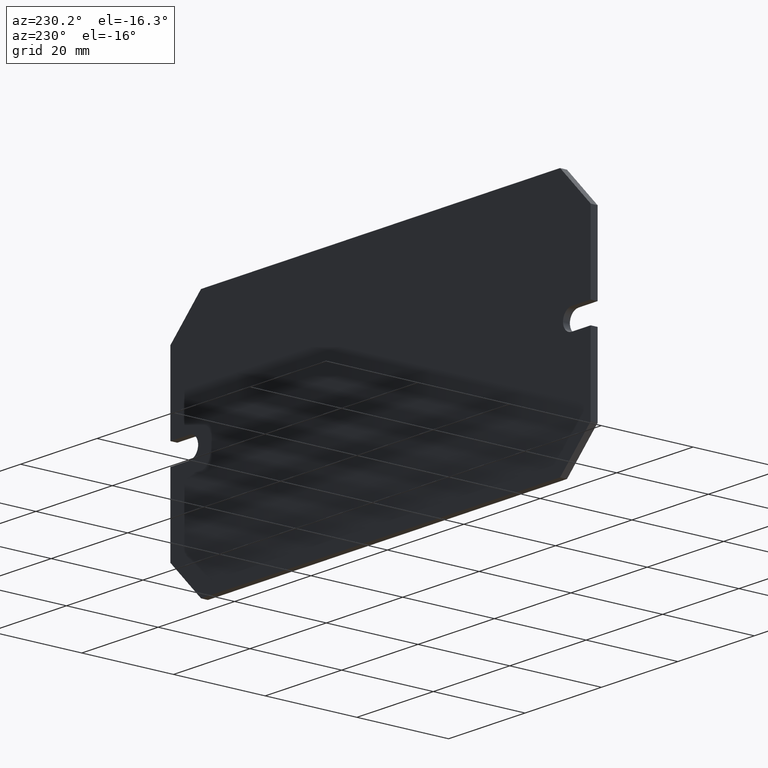
[diagram: clean part render]
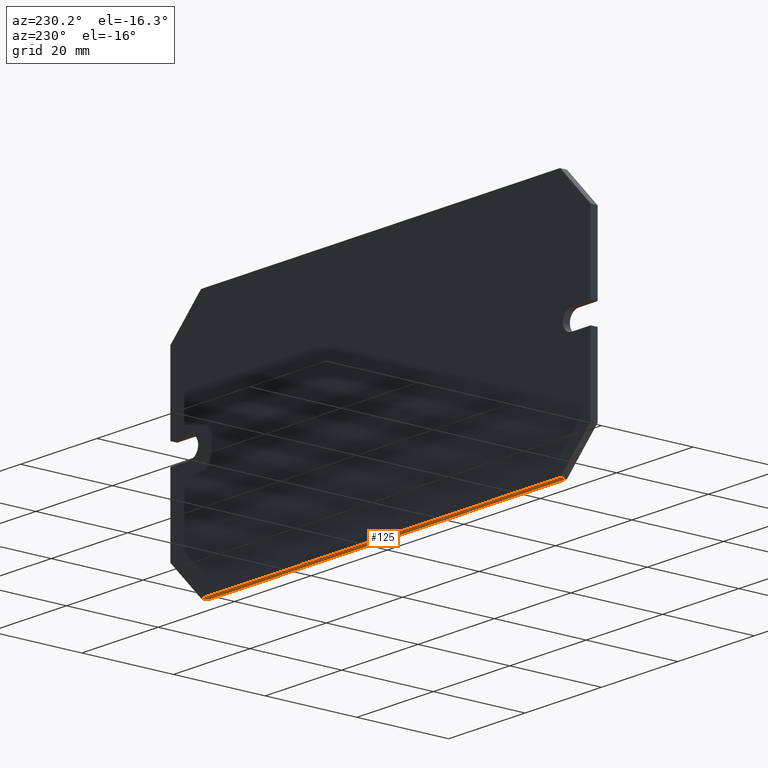
[diagram: same view with one face highlighted and labeled with its STEP entity id]
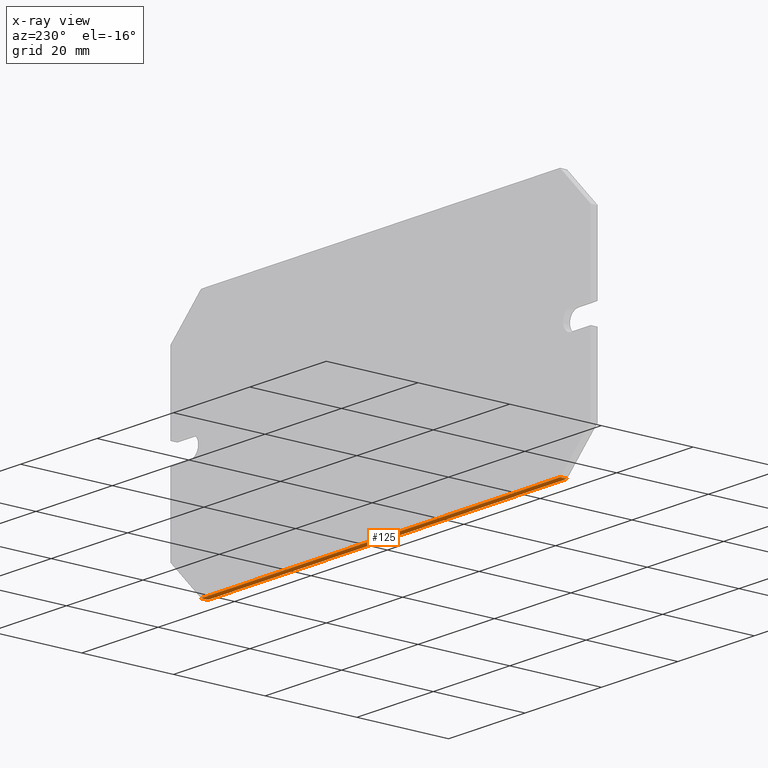
[diagram: x-ray of the same camera — body ghosted, the highlighted face saturated]
A machine part, auxiliary view. The second image highlights one B-rep face of the part: STEP entity #125.
The next image is the same camera in x-ray: the body ghosted, the highlighted face saturated — about 0% of this face is hidden behind the body in this view.
In plain terms, the highlighted planar face has unit normal (0, -0, 1).
Its self-contained STEP definition (entity closure, byte-faithful):
#77 = VERTEX_POINT ( 'NONE', #490 ) ;
#80 = VERTEX_POINT ( 'NONE', #494 ) ;
#82 = EDGE_CURVE ( 'NONE', #77, #80, #500, .T. ) ;
#122 = EDGE_CURVE ( 'NONE', #80, #143, #586, .T. ) ;
#123 = ORIENTED_EDGE ( 'NONE', *, *, #157, .F. ) ;
#124 = ORIENTED_EDGE ( 'NONE', *, *, #122, .T. ) ;
#125 = ADVANCED_FACE ( 'NONE', ( #582 ), #570, .F. ) ;
#143 = VERTEX_POINT ( 'NONE', #215 ) ;
#144 = EDGE_LOOP ( 'NONE', ( #124, #123, #162, #163 ) ) ;
#157 = EDGE_CURVE ( 'NONE', #158, #143, #230, .T. ) ;
#158 = VERTEX_POINT ( 'NONE', #226 ) ;
#162 = ORIENTED_EDGE ( 'NONE', *, *, #164, .F. ) ;
#163 = ORIENTED_EDGE ( 'NONE', *, *, #82, .T. ) ;
#164 = EDGE_CURVE ( 'NONE', #77, #158, #416, .T. ) ;
#215 = CARTESIAN_POINT ( 'NONE',  ( -46.99999999999997900, 0.0000000000000000000, -26.99999999999997900 ) ) ;
#226 = CARTESIAN_POINT ( 'NONE',  ( -46.99999999999997900, 1.500000000000000000, -26.99999999999997900 ) ) ;
#227 = DIRECTION ( 'NONE',  ( -0.0000000000000000000, -1.000000000000000000, -0.0000000000000000000 ) ) ;
#228 = VECTOR ( 'NONE', #227, 1000.000000000000000 ) ;
#229 = CARTESIAN_POINT ( 'NONE',  ( -46.99999999999997900, 1.500000000000000000, -26.99999999999997900 ) ) ;
#230 = LINE ( 'NONE', #229, #228 ) ;
#413 = DIRECTION ( 'NONE',  ( -1.000000000000000000, -0.0000000000000000000, 1.107270303814983800E-016 ) ) ;
#414 = VECTOR ( 'NONE', #413, 1000.000000000000000 ) ;
#415 = CARTESIAN_POINT ( 'NONE',  ( -46.99999999999997900, 1.500000000000000000, -26.99999999999997900 ) ) ;
#416 = LINE ( 'NONE', #415, #414 ) ;
#490 = CARTESIAN_POINT ( 'NONE',  ( 46.99999999999997900, 1.500000000000000000, -26.99999999999998900 ) ) ;
#494 = CARTESIAN_POINT ( 'NONE',  ( 46.99999999999997900, 0.0000000000000000000, -26.99999999999998900 ) ) ;
#497 = DIRECTION ( 'NONE',  ( -0.0000000000000000000, -1.000000000000000000, -0.0000000000000000000 ) ) ;
#498 = VECTOR ( 'NONE', #497, 1000.000000000000000 ) ;
#499 = CARTESIAN_POINT ( 'NONE',  ( 46.99999999999997900, 1.500000000000000000, -26.99999999999998900 ) ) ;
#500 = LINE ( 'NONE', #499, #498 ) ;
#566 = DIRECTION ( 'NONE',  ( 1.000000000000000000, 0.0000000000000000000, -1.107270303814983800E-016 ) ) ;
#567 = DIRECTION ( 'NONE',  ( 1.107270303814983800E-016, -0.0000000000000000000, 1.000000000000000000 ) ) ;
#568 = CARTESIAN_POINT ( 'NONE',  ( -46.99999999999997900, 1.500000000000000000, -26.99999999999997900 ) ) ;
#569 = AXIS2_PLACEMENT_3D ( 'NONE', #568, #567, #566 ) ;
#570 = PLANE ( 'NONE',  #569 ) ;
#582 = FACE_OUTER_BOUND ( 'NONE', #144, .T. ) ;
#583 = DIRECTION ( 'NONE',  ( -1.000000000000000000, -0.0000000000000000000, 1.107270303814983800E-016 ) ) ;
#584 = VECTOR ( 'NONE', #583, 1000.000000000000000 ) ;
#585 = CARTESIAN_POINT ( 'NONE',  ( -46.99999999999997900, 0.0000000000000000000, -26.99999999999997900 ) ) ;
#586 = LINE ( 'NONE', #585, #584 ) ;